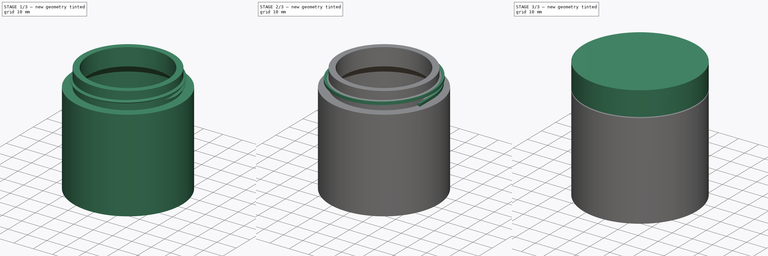
[diagram: build sequence overview — one tinted view per stage of 3, left to right]
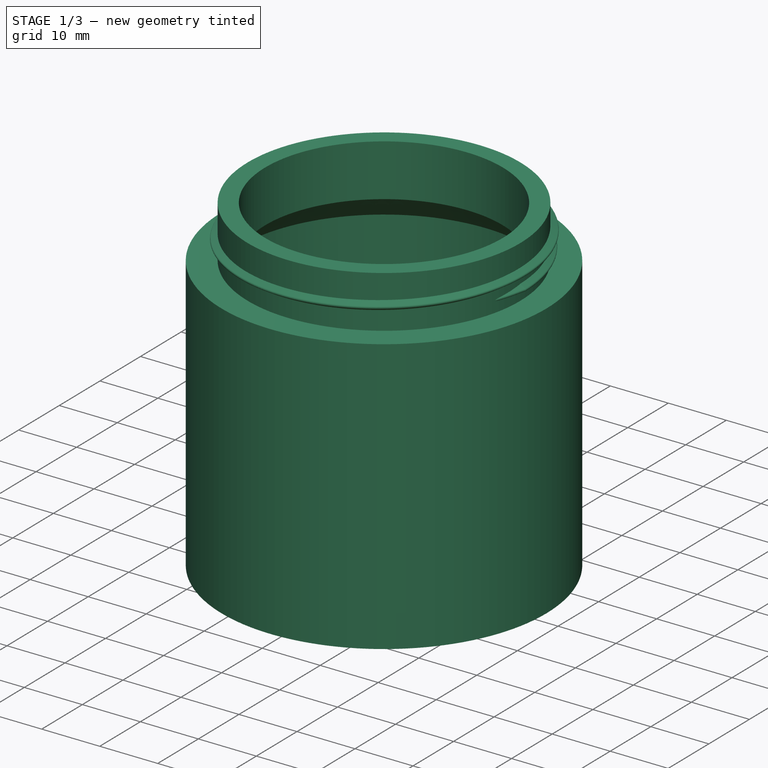
[diagram: stage 1 of 3 — iso view after this stage's code; geometry added in this stage tinted green]
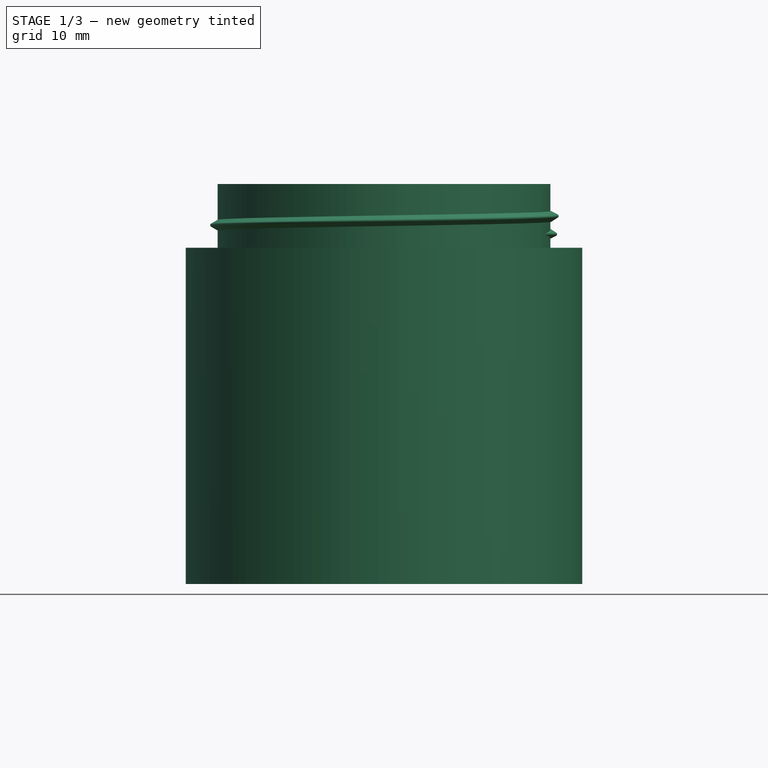
[diagram: stage 1 of 3 — front view after this stage's code; geometry added in this stage tinted green]
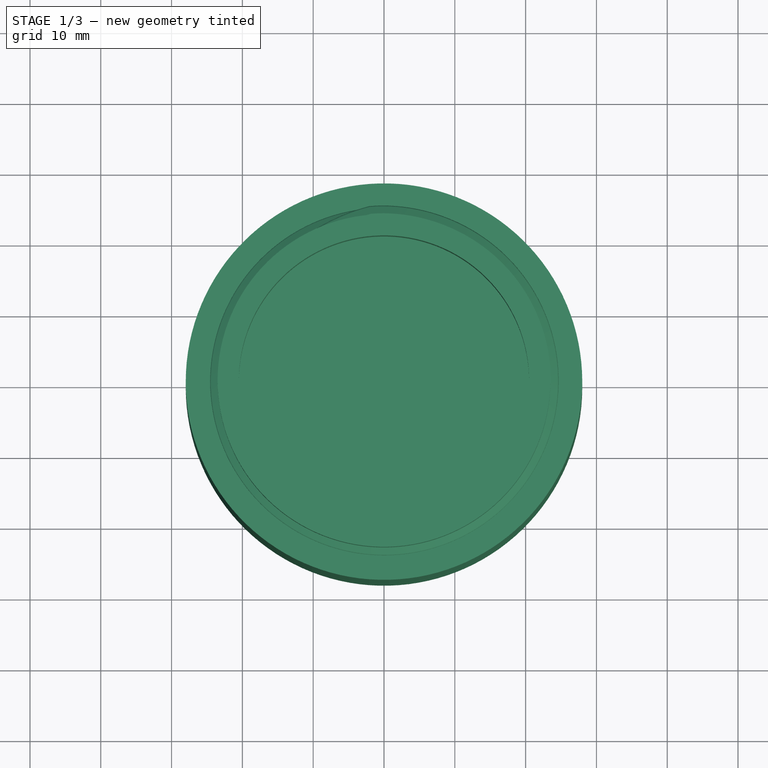
[diagram: stage 1 of 3 — top view after this stage's code; geometry added in this stage tinted green]
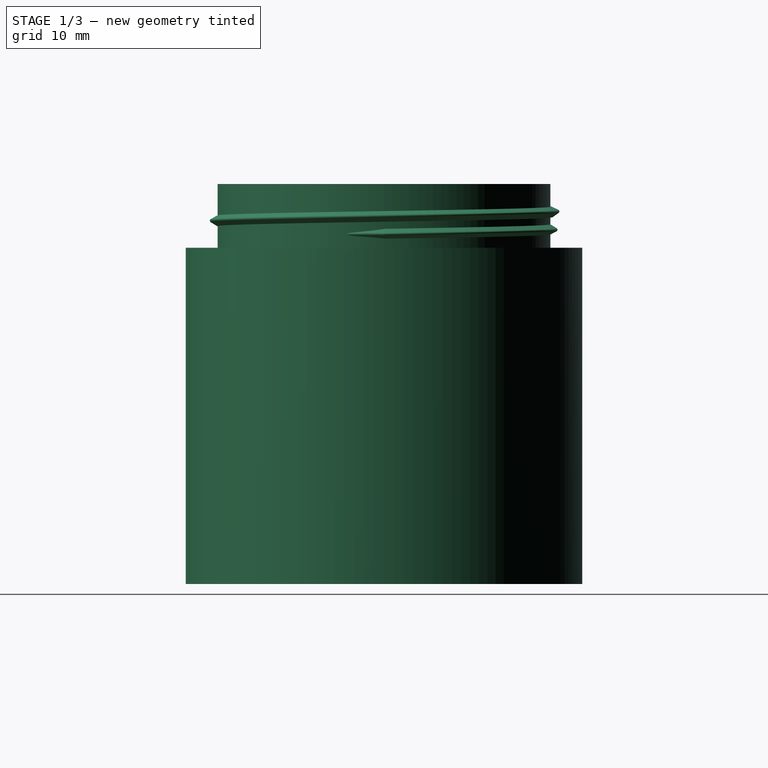
[diagram: stage 1 of 3 — right view after this stage's code; geometry added in this stage tinted green]
FCSTD DOCUMENT  (FreeCAD 0.21RUnknown)
Label: part41-screw_top_container
License: All rights reserved
LicenseURL: http://en.wikipedia.org/wiki/All_rights_reserved
objects: Part::FeaturePython×8, Sketcher::SketchObject×5, Part::Revolution×2, Part::Sweep×2, Part::MultiFuse×2, App::Link×2, App::DocumentObjectGroup×1, Part::Helix×1
note: 20 computed .brp shape members not serialized (recipe doc carries the construction recipe); baked Part::Feature solids carry a one-line shape summary decoded from their .brp

FEATURE [Part::Revolution] Revolve001  label="Container"
  Angle = 360
  Axis = (0,0,1)
  Base = (0,0,0)
  FaceMakerClass = Part::FaceMakerBullseye
  Solid = true
  Source = -> Sketch_child1
  Symmetric = false
FEATURE [Sketcher::SketchObject] Sketch003
  FullyConstrained = false
  MapMode = 1
  Placement = pos=(-2.9268,27.8466,54.8) rot=(0,0,1;0rad)
  Support = -> [Helix]
  sketch-geometry (1):
    g0: ArcOfCircle CenterX=7.83928 CenterY=-30.0962 CenterZ=0 NormalX=0 NormalY=0 NormalZ=1 AngleXU=0 Radius=31.1004 StartAngle=1.82561 EndAngle=2.39046
  constraints (1):
    c: Coincident(g0,g-1)
FEATURE [Sketcher::SketchObject] Sketch004
  FullyConstrained = false
  MapMode = 1
  Placement = pos=(28,0,51) rot=(0,0,1;0rad)
  Support = -> [Helix]
  sketch-geometry (1):
    g0: ArcOfCircle CenterX=-31.3445 CenterY=4.99378 CenterZ=0 NormalX=0 NormalY=0 NormalZ=1 AngleXU=0 Radius=31.7398 StartAngle=5.64177 EndAngle=6.12519
  constraints (1):
    c: Coincident(g0,g-1)
FEATURE [Part::FeaturePython] Connect001  label="Connect001 - From Part -> join > connect"  # WARN: FeaturePython — macro-defined, semantics opaque (R4)
  Objects = -> [Helix,Sketch003,Sketch004]
  Tolerance = 0
FEATURE [Part::FeaturePython] JoinCurve001  label="JoinCurve001 - from curves VB -> curves -> join"  # WARN: FeaturePython — macro-defined, semantics opaque (R4)
  Active = false
  ApproxTolerance = 0.001
  Continuity = 5
  CornerBreak = false
  DegreeMax = 5
  DegreeMin = 3
  Edges = -> [Sketch003,Helix,Sketch004]
  ForceClosed = false
  ForceContact = true
  Parametrization = 0
  Reverse = false
  Samples = 100
  StartOffset = 0
  Tolerance = 0.01
FEATURE [Part::Sweep] Sweep001  label="ContainerThreadSweep"
  Frenet = false
  Sections = -> [Sketch_child3]
  Solid = true
  Spine = -> JoinCurve001
  Transition = 1
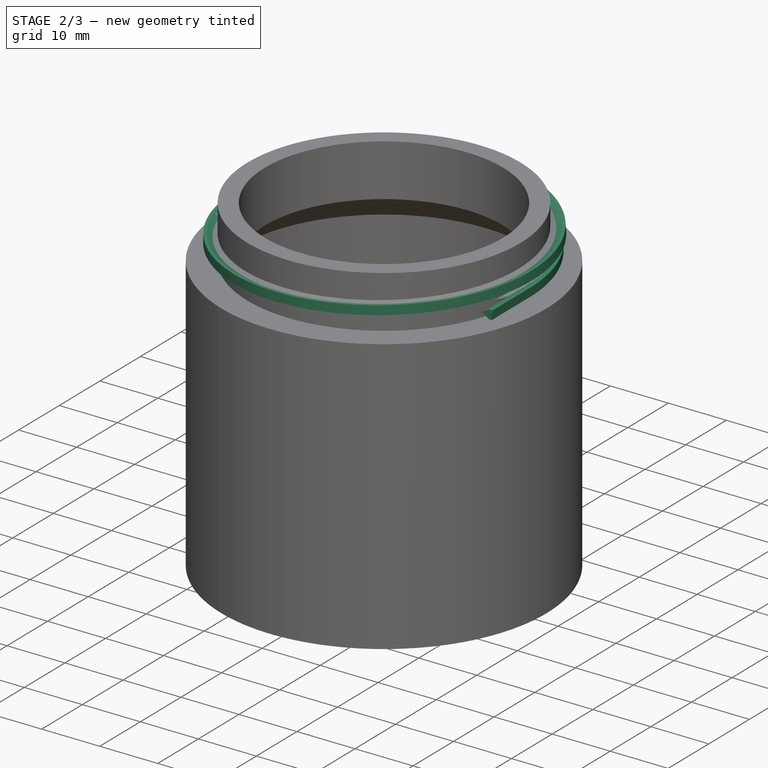
[diagram: stage 2 of 3 — iso view after this stage's code; geometry added in this stage tinted green]
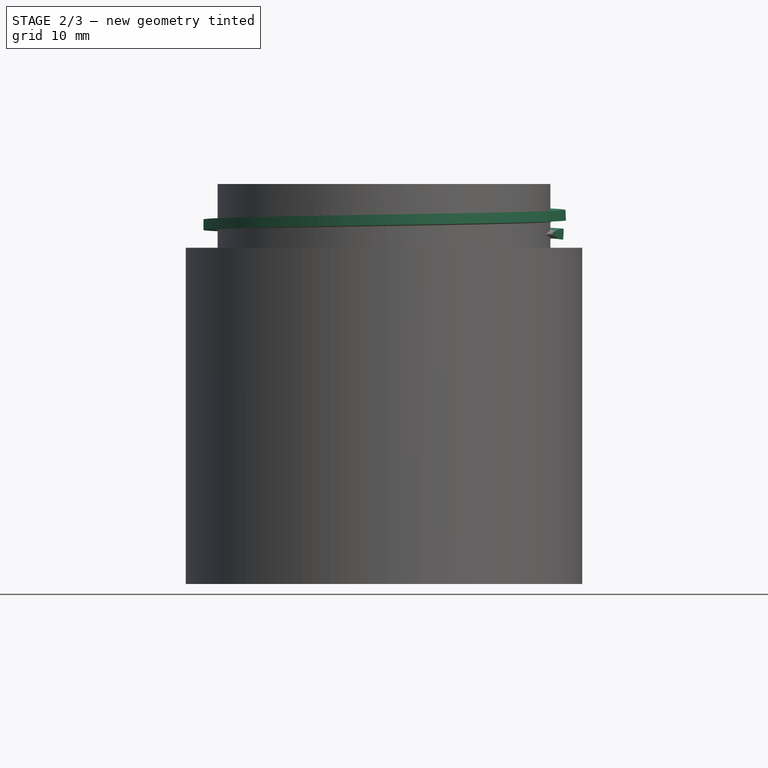
[diagram: stage 2 of 3 — front view after this stage's code; geometry added in this stage tinted green]
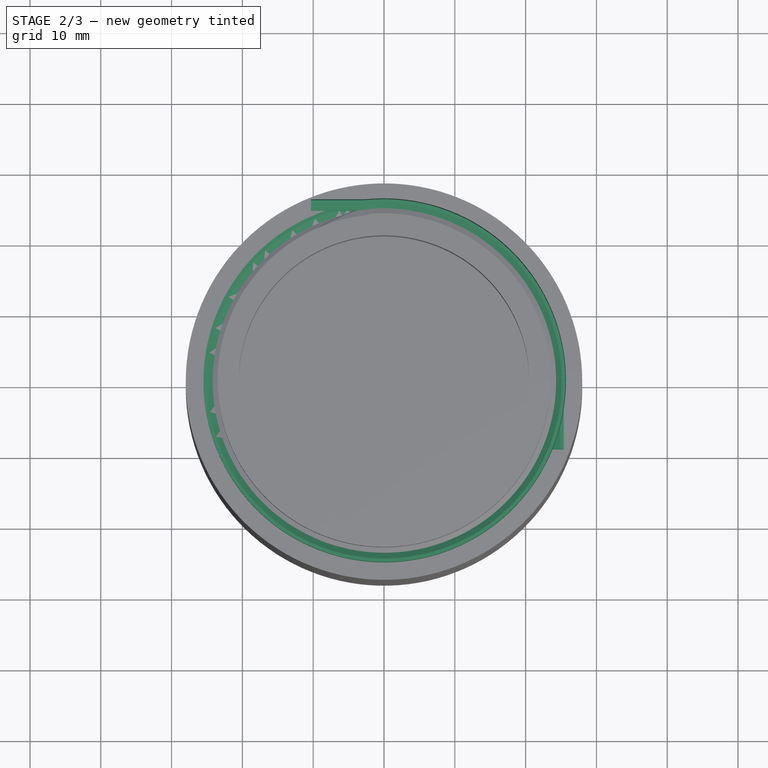
[diagram: stage 2 of 3 — top view after this stage's code; geometry added in this stage tinted green]
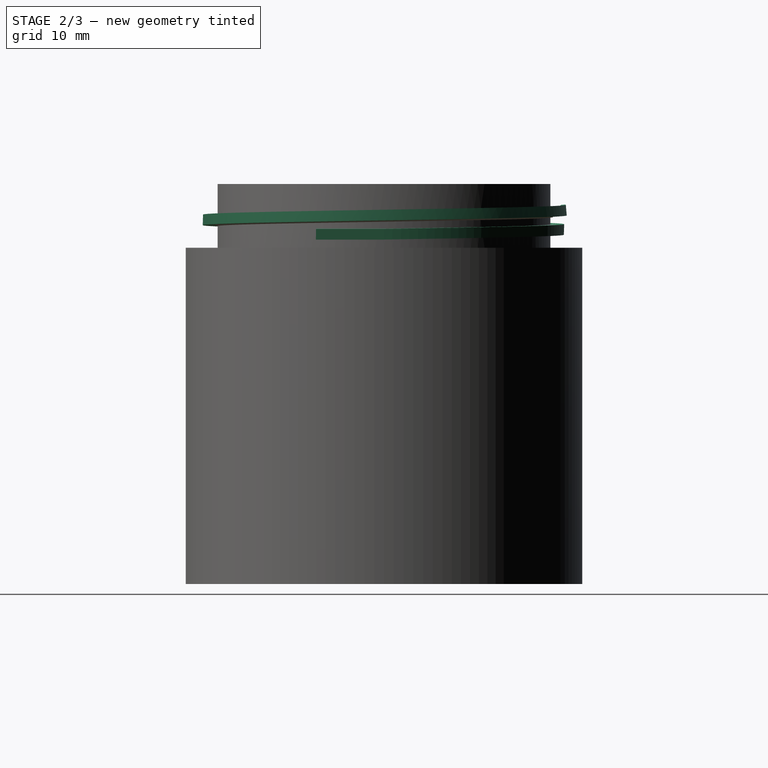
[diagram: stage 2 of 3 — right view after this stage's code; geometry added in this stage tinted green]
FEATURE [Part::Helix] Helix
  Angle = 0
  AttacherType = Attacher::AttachEngine3D
  Height = 3.8
  LocalCoord = 0
  Pitch = 3
  Placement = pos=(0,0,51) rot=(0,0,1;0rad)
  Radius = 28
  SegmentLength = 0
  Style = 1
FEATURE [Sketcher::SketchObject] Sketch001
  FullyConstrained = false
  MapMode = 1
  Placement = pos=(28,0,51) rot=(0,0,1;0rad)
  Support = -> [Helix]
  sketch-geometry (1):
    g0: LineSegment StartX=0 StartY=0 StartZ=0 EndX=0 EndY=-9.55856 EndZ=0
  constraints (2):
    c: Coincident(g0,g-1)
    c: PointOnObject(g0,g-2)
FEATURE [Sketcher::SketchObject] Sketch002
  FullyConstrained = false
  MapMode = 1
  Placement = pos=(-2.9268,27.8466,54.8) rot=(0,0,1;0rad)
  Support = -> [Helix]
  sketch-geometry (1):
    g0: LineSegment StartX=0 StartY=0 StartZ=0 EndX=-7.42467 EndY=0 EndZ=0
  constraints (2):
    c: Coincident(g0,g-1)
    c: PointOnObject(g0,g-1)
FEATURE [Part::FeaturePython] Connect  # WARN: FeaturePython — macro-defined, semantics opaque (R4)
  Objects = -> [Helix,Sketch001,Sketch002]
  Tolerance = 0
FEATURE [Part::Sweep] Sweep  label="LidThreadSweep"
  Frenet = false
  Placement = pos=(0,0,1) rot=(0,0,1;0rad)
  Sections = -> [Sketch_child2]
  Solid = true
  Spine = -> Connect
  Transition = 2
FEATURE [Part::MultiFuse] Fusion001
  Shapes = -> [Revolve001,Sweep001]
FEATURE [App::Link] Link  label="Fusion002"
  LinkPlacement = pos=(-68.2397,1.28762,60.5435) rot=(-0.654458,0.755978,0.013517;3.12411rad)
  LinkedObject = -> Fusion
  Placement = pos=(-68.2397,1.28762,60.5435) rot=(-0.654458,0.755978,0.013517;3.12411rad)
FEATURE [App::Link] Link001  label="Fusion003"
  LinkedObject = -> Fusion001
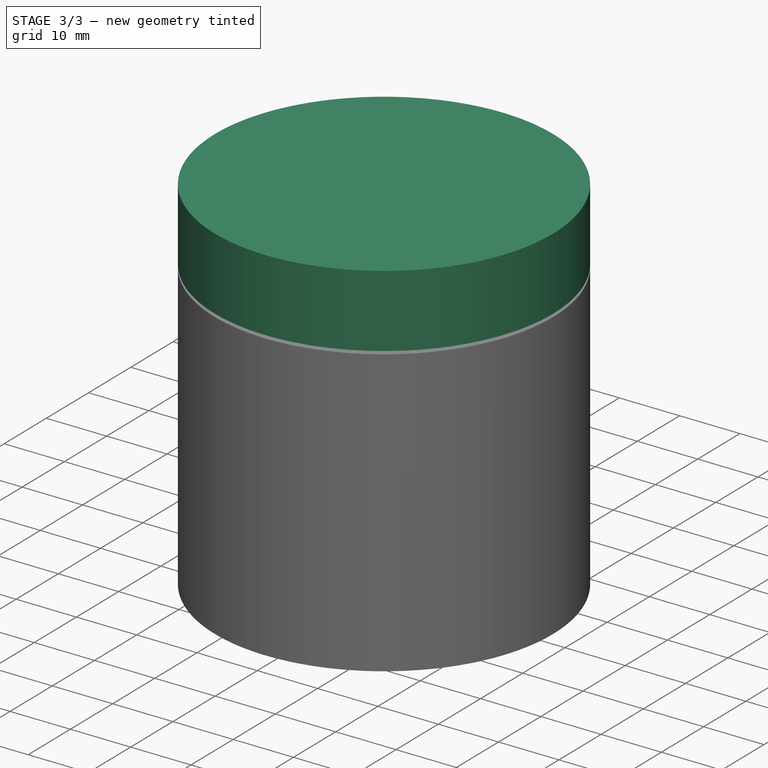
[diagram: stage 3 of 3 — iso view after this stage's code; geometry added in this stage tinted green]
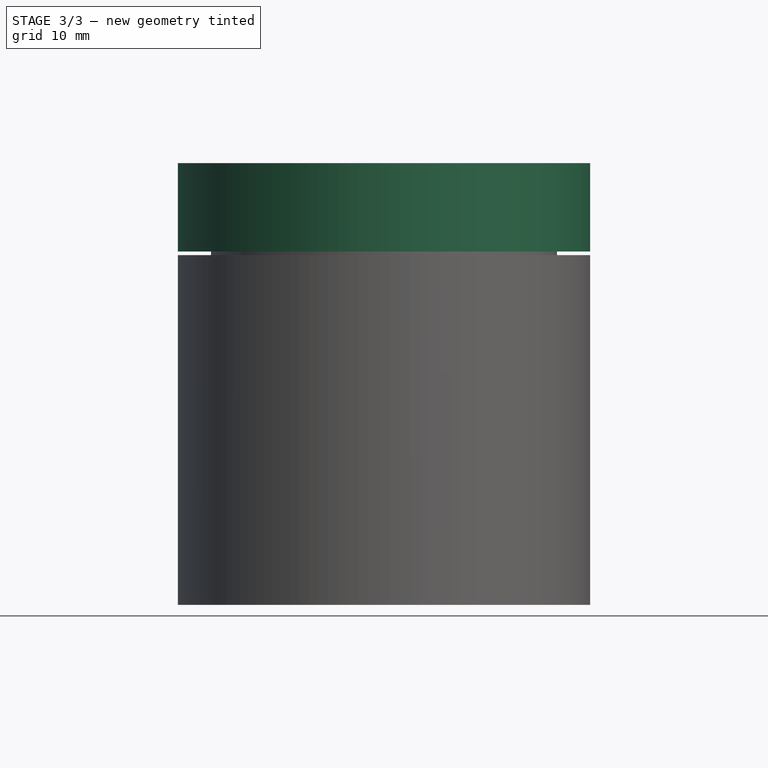
[diagram: stage 3 of 3 — front view after this stage's code; geometry added in this stage tinted green]
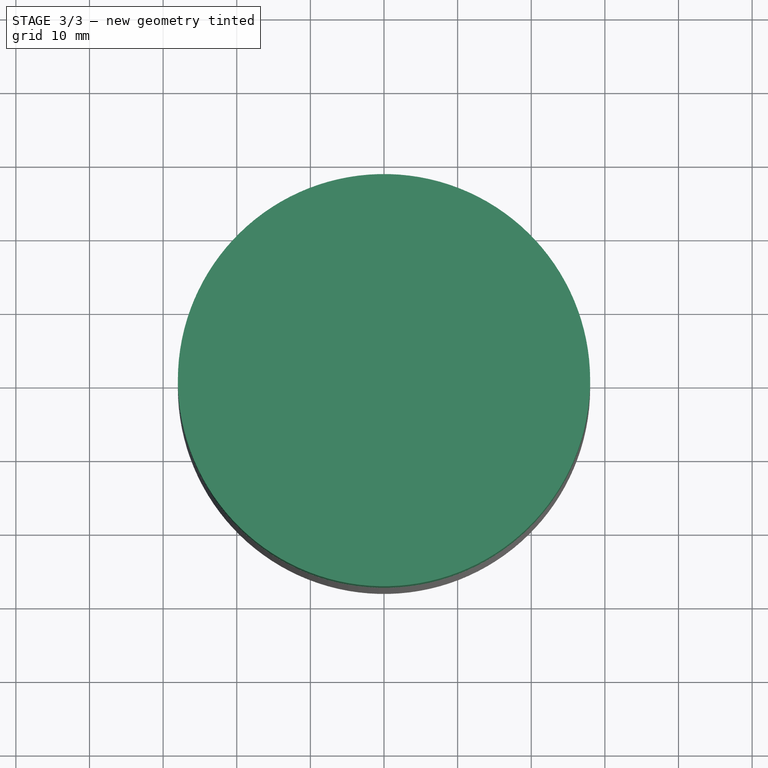
[diagram: stage 3 of 3 — top view after this stage's code; geometry added in this stage tinted green]
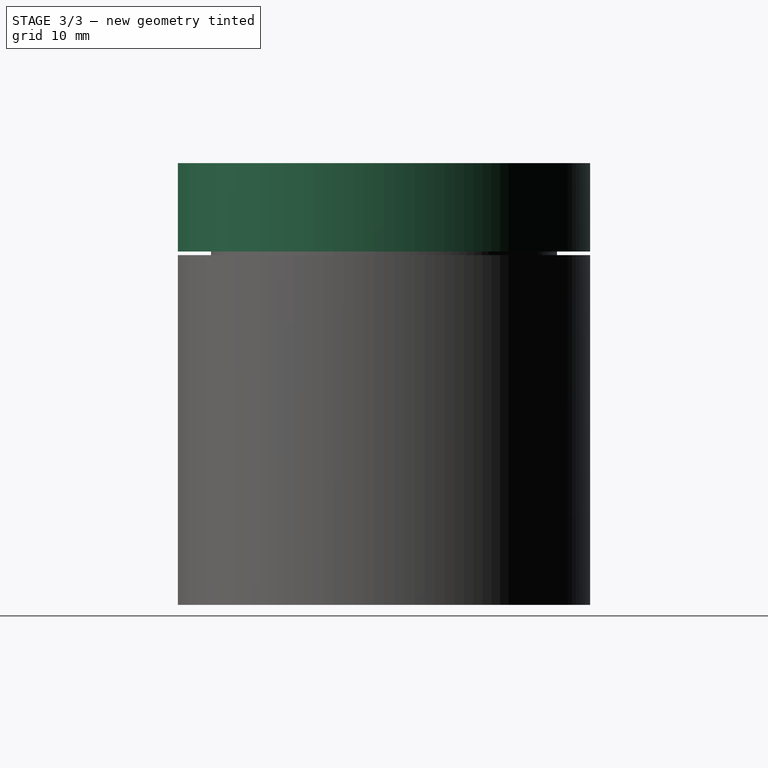
[diagram: stage 3 of 3 — right view after this stage's code; geometry added in this stage tinted green]
FEATURE [Sketcher::SketchObject] Sketch
  FullyConstrained = true
  Placement = pos=(0,0,0) rot=(1,0,0;1.5708rad)
  sketch-geometry (31):
    g0: LineSegment StartX=0 StartY=60 StartZ=0 EndX=-28 EndY=60 EndZ=0
    g1: LineSegment StartX=-28 StartY=60 StartZ=0 EndX=-28 EndY=48 EndZ=0
    g2: LineSegment StartX=-28 StartY=48 StartZ=0 EndX=-25 EndY=48 EndZ=0
    g3: LineSegment StartX=-25 StartY=48 StartZ=0 EndX=-25 EndY=57 EndZ=0
    g4: LineSegment StartX=-25 StartY=57 StartZ=0 EndX=0 EndY=57 EndZ=0
    g5: LineSegment StartX=0 StartY=57 StartZ=0 EndX=0 EndY=60 EndZ=0
    g6: LineSegment StartX=-23.5 StartY=56.5 StartZ=0 EndX=-23.5 EndY=47.5 EndZ=0
    g7: LineSegment StartX=-23.5 StartY=47.5 StartZ=0 EndX=-28 EndY=47.5 EndZ=0
    g8: LineSegment StartX=-28 StartY=47.5 StartZ=0 EndX=-28 EndY=0 EndZ=0
    g9: LineSegment StartX=-28 StartY=0 StartZ=0 EndX=0 EndY=0 EndZ=0
    g10: LineSegment StartX=0 StartY=0 StartZ=0 EndX=0 EndY=3 EndZ=0
    g11: LineSegment StartX=0 StartY=3 StartZ=0 EndX=-25 EndY=3 EndZ=0
    g12: LineSegment StartX=-25 StartY=3 StartZ=0 EndX=-25 EndY=43 EndZ=0
    g13: LineSegment StartX=-25 StartY=43 StartZ=0 EndX=-20.5 EndY=47.5 EndZ=0
    g14: LineSegment StartX=-20.5 StartY=47.5 StartZ=0 EndX=-20.5 EndY=56.5 EndZ=0
    g15: LineSegment StartX=-20.5 StartY=56.5 StartZ=0 EndX=-23.5 EndY=56.5 EndZ=0
    g16: LineSegment StartX=-25.5 StartY=49 StartZ=0 EndX=-25 EndY=49 EndZ=0
    g17: LineSegment StartX=-25 StartY=49 StartZ=0 EndX=-24.076 EndY=49.5335 EndZ=0
    g18: LineSegment StartX=-24.076 StartY=49.9665 StartZ=0 EndX=-25 EndY=50.5 EndZ=0
    g19: LineSegment StartX=-25 StartY=50.5 StartZ=0 EndX=-25.5 EndY=50.5 EndZ=0
    g20: LineSegment StartX=-25.5 StartY=50.5 StartZ=0 EndX=-25.5 EndY=49 EndZ=0
    g21: LineSegment StartX=-24.424 StartY=50.9005 StartZ=0 EndX=-23.5 EndY=51.434 EndZ=0
    g22: LineSegment StartX=-23.5 StartY=51.434 StartZ=0 EndX=-23 EndY=51.434 EndZ=0
    g23: LineSegment StartX=-23 StartY=51.434 StartZ=0 EndX=-23 EndY=49.934 EndZ=0
    g24: LineSegment StartX=-23 StartY=49.934 StartZ=0 EndX=-23.5 EndY=49.934 EndZ=0
    g25: LineSegment StartX=-23.5 StartY=49.934 StartZ=0 EndX=-24.424 EndY=50.4675 EndZ=0
    g26: GeomPoint X=-23.701 Y=50.05 Z=0
    g27: ArcOfCircle CenterX=-24.299 CenterY=50.684 CenterZ=0 NormalX=0 NormalY=0 NormalZ=1 AngleXU=0 Radius=0.25 StartAngle=2.0944 EndAngle=4.18879
    g28: GeomPoint X=-24.799 Y=50.684 Z=0
    g29: ArcOfCircle CenterX=-24.201 CenterY=49.75 CenterZ=0 NormalX=0 NormalY=0 NormalZ=1 AngleXU=0 Radius=0.25 StartAngle=5.23599 EndAngle=7.33038
    g30: GeomPoint X=-23.701 Y=49.75 Z=0
  constraints (87):
    c: PointOnObject(g0,g-2)
    c: Horizontal(g0)
    c: Coincident(g0,g1)
    c: Vertical(g1)
    c: DistanceX(g0,g0) = 28
    c: DistanceY(g1,g1) = 12
    c: Coincident(g1,g2)
    c: Coincident(g2,g3)
    c: Vertical(g3)
    c: Coincident(g3,g4)
    c: PointOnObject(g4,g-2)
    c: Horizontal(g4)
    c: Coincident(g4,g5)
    c: Coincident(g5,g0)
    c: DistanceY(g5,g5) = 3
    c: Equal(g5,g2)
    c: Horizontal(g2)
    c: DistanceY(g-1,g0) = 60
    c: Vertical(g6)
    c: Coincident(g6,g7)
    c: Horizontal(g7)
    c: Coincident(g7,g8)
    c: PointOnObject(g8,g-1)
    c: Vertical(g8)
    c: Coincident(g8,g9)
    c: Coincident(g9,g-1)
    c: Coincident(g9,g10)
    c: PointOnObject(g10,g-2)
    c: Coincident(g10,g11)
    c: Horizontal(g11)
    c: Coincident(g11,g12)
    c: Vertical(g12)
    c: Coincident(g12,g13)
    c: Coincident(g13,g14)
    c: Vertical(g14)
    c: Coincident(g14,g15)
    c: Coincident(g15,g6)
    c: Horizontal(g15)
    c: Equal(g15,g2)
    c: Vertical(g1,g7)
    c: Horizontal(g6,g13)
    c: DistanceY(g7,g1) = 0.5
    c: DistanceY(g6,g3) = 0.5
    c: DistanceX(g3,g6) = 1.5
    c: Equal(g10,g5)
    c: Vertical(g2,g12)
    c: DistanceY(g12,g12) = 40
    c: Horizontal(g16)
    c: Coincident(g16,g17)
    c: Coincident(g18,g19)
    c: Horizontal(g19)
    c: Coincident(g19,g20)
    c: Coincident(g20,g16)
    c: Vertical(g20)
    c: Vertical(g16,g18)
    c: PointOnObject(g18,g3)
    c: Distance(g16,g30) = 1.5
    c: Angle(g17,g3) = 1.0472
    c: DistanceX(g19,g19) = 0.5
    c: PointOnObject(g21,g6)
    c: Coincident(g21,g22)
    c: Coincident(g22,g23)
    c: Vertical(g23)
    c: Coincident(g23,g24)
    c: PointOnObject(g24,g6)
    c: Horizontal(g24)
    c: Coincident(g24,g25)
    c: Equal(g19,g22)
    c: Horizontal(g22)
    c: Equal(g23,g20)
    c: DistanceY(g2,g16) = 1
    c: PointOnObject(g26,g25)
    c: Vertical(g30,g26)
    c: DistanceY(g30,g26) = 0.3
    c: PointOnObject(g28,g25)
    c: PointOnObject(g28,g21)
    c: Tangent(g25,g27) = 1.5708
    c: Tangent(g21,g27) = 1.5708
    c: PointOnObject(g30,g18)
    c: PointOnObject(g30,g17)
    c: Tangent(g18,g29) = -1.5708
    c: Tangent(g17,g29) = -1.5708
    c: Vertical(g17,g18)
    c: Vertical(g25,g21)
    c: Radius(g29) = 0.25
    c: Equal(g29,g27)
    c: Equal(g18,g25)
FEATURE [Part::FeaturePython] Sketch_child0  label="LidProfile"  # WARN: FeaturePython — macro-defined, semantics opaque (R4)
  Base = -> Sketch
  FilterType = 1
  Invert = false
  OverrideMaxVal = 0
  WindowFrom = 80
  WindowTo = 100
  items = 0
FEATURE [Part::FeaturePython] Sketch_child1  label="ContainerProfile"  # WARN: FeaturePython — macro-defined, semantics opaque (R4)
  Base = -> Sketch
  FilterType = 1
  Invert = false
  OverrideMaxVal = 0
  WindowFrom = 80
  WindowTo = 100
  items = 1
FEATURE [Part::FeaturePython] Sketch_child2  label="LidThreadProfile"  # WARN: FeaturePython — macro-defined, semantics opaque (R4)
  Base = -> Sketch
  FilterType = 1
  Invert = false
  OverrideMaxVal = 0
  WindowFrom = 80
  WindowTo = 100
  items = 2
FEATURE [Part::FeaturePython] Sketch_child3  label="ContainerThreadProfile"  # WARN: FeaturePython — macro-defined, semantics opaque (R4)
  Base = -> Sketch
  FilterType = 1
  Invert = false
  OverrideMaxVal = 0
  WindowFrom = 80
  WindowTo = 100
  items = 3
FEATURE [App::DocumentObjectGroup] GrExplode_Sketch  label="Exploded Sketch"
  Group = -> [Sketch_child0,Sketch_child1,Sketch_child2,Sketch_child3]
FEATURE [Part::Revolution] Revolve  label="Lid"
  Angle = 360
  Axis = (0,0,1)
  Base = (0,0,0)
  FaceMakerClass = Part::FaceMakerBullseye
  Solid = true
  Source = -> Sketch_child0
  Symmetric = false
FEATURE [Part::FeaturePython] JoinCurve  label="JoinCurve - join curves using curves WB"  # WARN: FeaturePython — macro-defined, semantics opaque (R4)
  Active = false
  ApproxTolerance = 0.001
  Continuity = 5
  CornerBreak = false
  DegreeMax = 5
  DegreeMin = 3
  Edges = -> [Sketch002,Helix,Sketch001]
  ForceClosed = false
  ForceContact = true
  Parametrization = 0
  Reverse = false
  Samples = 100
  StartOffset = 0
  Tolerance = 0.01
FEATURE [Part::MultiFuse] Fusion
  Shapes = -> [Revolve,Sweep]
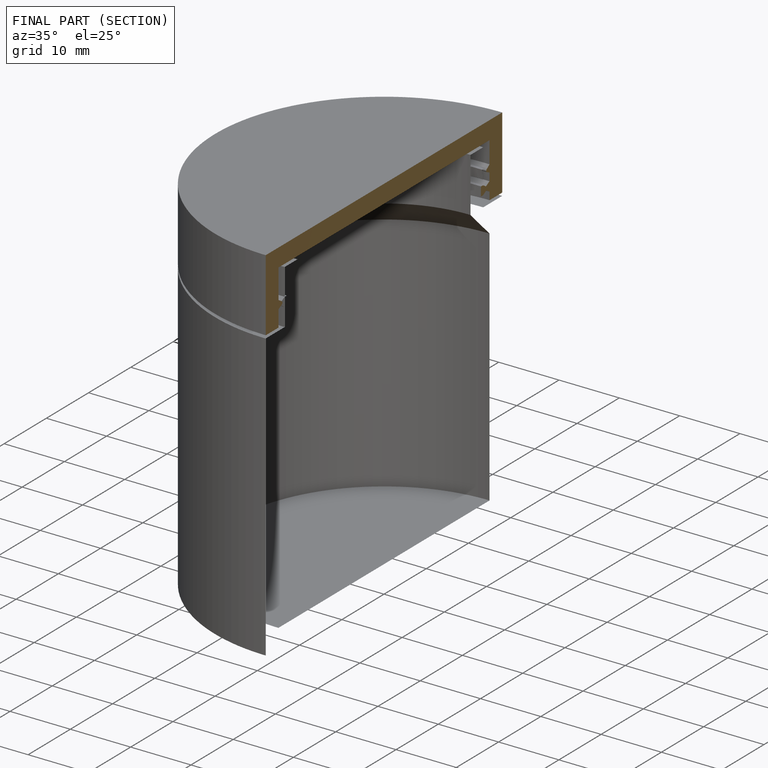
[diagram: finished part — half-section view (interior)]
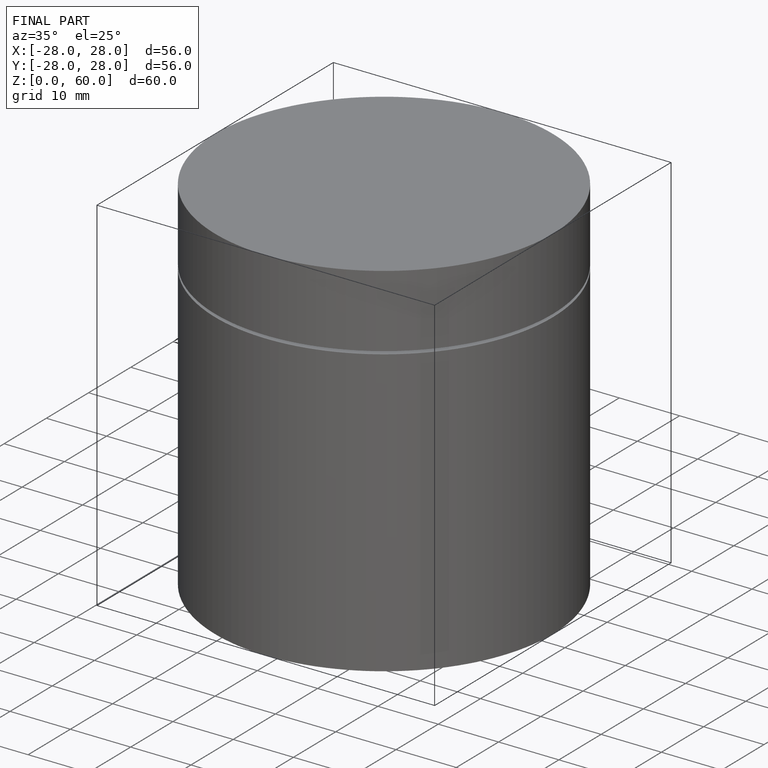
[diagram: finished part — iso view with bounding-box wireframe]
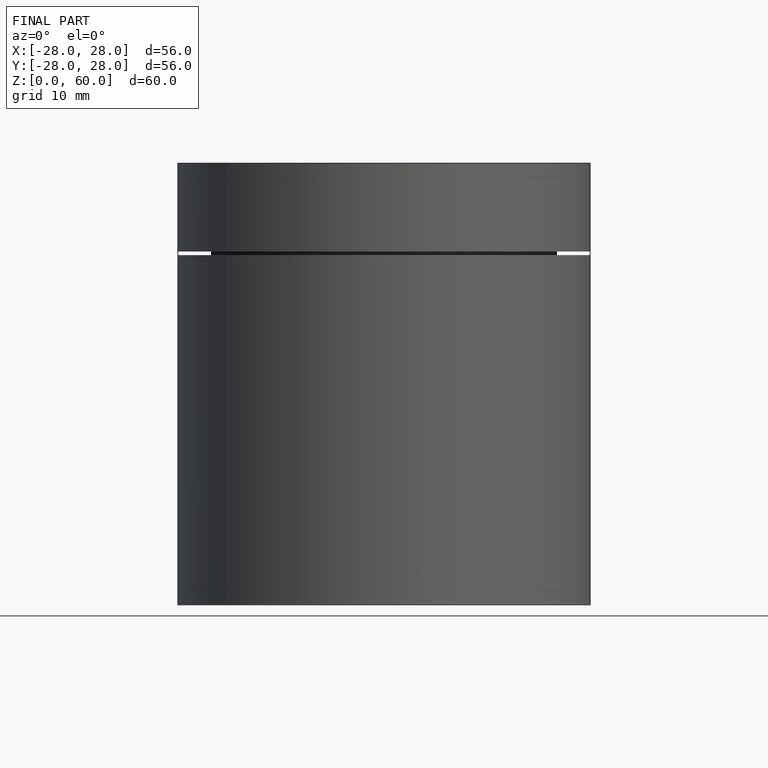
[diagram: finished part — front view with bounding-box wireframe]
